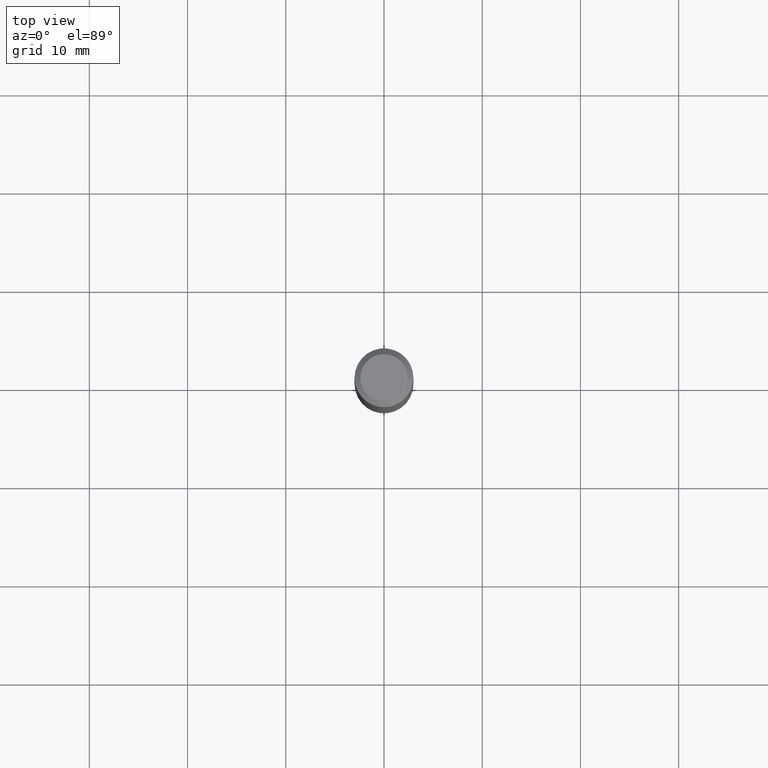
[diagram: clean part render]
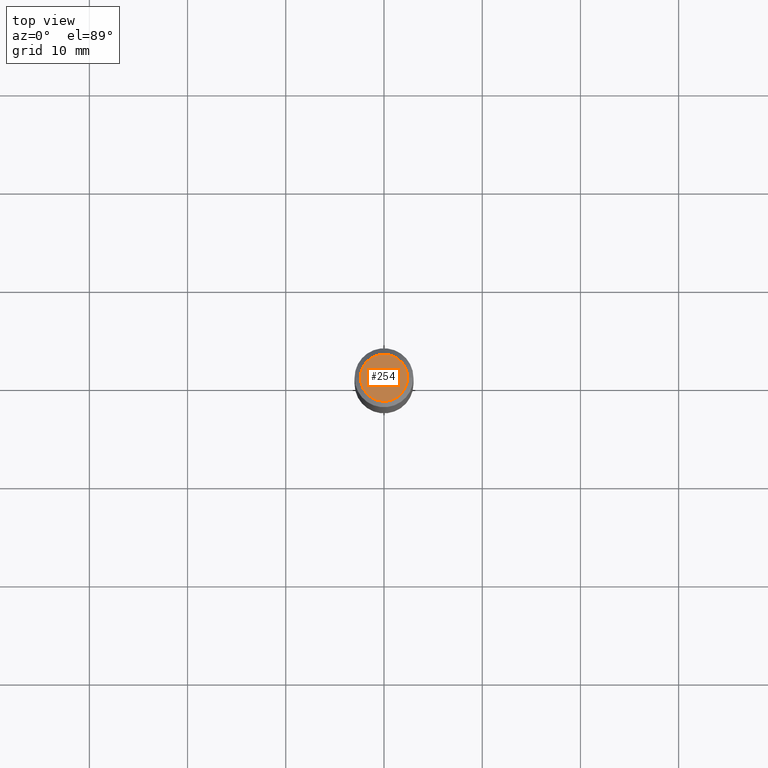
[diagram: same view with one face highlighted and labeled with its STEP entity id]
A machine part, top view. The second image highlights one B-rep face of the part: STEP entity #254.
In plain terms, the highlighted planar face has unit normal (0, -0, -1).
Its self-contained STEP definition (entity closure, byte-faithful):
#50 = CARTESIAN_POINT ( 'NONE',  ( -0.09447999999999998066, 7.009847083995354710E-16, -1.928573779297727792E-17 ) ) ;
#52 = CARTESIAN_POINT ( 'NONE',  ( 4.716267017698007905E-46, -6.733579360998555036E-32, -1.928573779297252010E-17 ) ) ;
#54 = EDGE_CURVE ( 'NONE', #71, #100, #389, .T. ) ;
#69 = EDGE_LOOP ( 'NONE', ( #255, #373 ) ) ;
#71 = VERTEX_POINT ( 'NONE', #50 ) ;
#76 = CARTESIAN_POINT ( 'NONE',  ( 4.716267017698007905E-46, -6.733579360998555036E-32, -1.928573779297252010E-17 ) ) ;
#100 = VERTEX_POINT ( 'NONE', #281 ) ;
#115 = AXIS2_PLACEMENT_3D ( 'NONE', #437, #482, #442 ) ;
#123 = EDGE_CURVE ( 'NONE', #100, #71, #191, .T. ) ;
#140 = AXIS2_PLACEMENT_3D ( 'NONE', #76, #381, #305 ) ;
#170 = DIRECTION ( 'NONE',  ( -2.445468806185136597E-29, 3.491481338843145583E-15, 1.000000000000000000 ) ) ;
#191 = CIRCLE ( 'NONE', #438, 0.09447999999999998066 ) ;
#254 = ADVANCED_FACE ( 'NONE', ( #326 ), #256, .F. ) ;
#255 = ORIENTED_EDGE ( 'NONE', *, *, #54, .T. ) ;
#256 = PLANE ( 'NONE',  #115 ) ;
#281 = CARTESIAN_POINT ( 'NONE',  ( 0.09447999999999998066, -7.704367267948738690E-16, -1.928573779296752193E-17 ) ) ;
#305 = DIRECTION ( 'NONE',  ( 1.000000000000000000, -6.982962677686267499E-15, 4.875432709231658792E-29 ) ) ;
#326 = FACE_OUTER_BOUND ( 'NONE', #69, .T. ) ;
#373 = ORIENTED_EDGE ( 'NONE', *, *, #123, .T. ) ;
#381 = DIRECTION ( 'NONE',  ( -2.445468806185136597E-29, 3.491481338843145583E-15, 1.000000000000000000 ) ) ;
#389 = CIRCLE ( 'NONE', #140, 0.09447999999999998066 ) ;
#430 = DIRECTION ( 'NONE',  ( 1.000000000000000000, -6.982962677686267499E-15, 4.875432709231658792E-29 ) ) ;
#437 = CARTESIAN_POINT ( 'NONE',  ( 2.358133508849003952E-46, -3.366789680499277518E-32, -9.642868896486260050E-18 ) ) ;
#438 = AXIS2_PLACEMENT_3D ( 'NONE', #52, #170, #430 ) ;
#442 = DIRECTION ( 'NONE',  ( -1.000000000000000000, 6.982962677686265922E-15, -4.876176775795935793E-29 ) ) ;
#482 = DIRECTION ( 'NONE',  ( 2.438088387897960049E-29, -3.491481338843145188E-15, -1.000000000000000000 ) ) ;